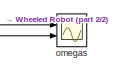
[diagram: root canvas - part 1/2, top right region]
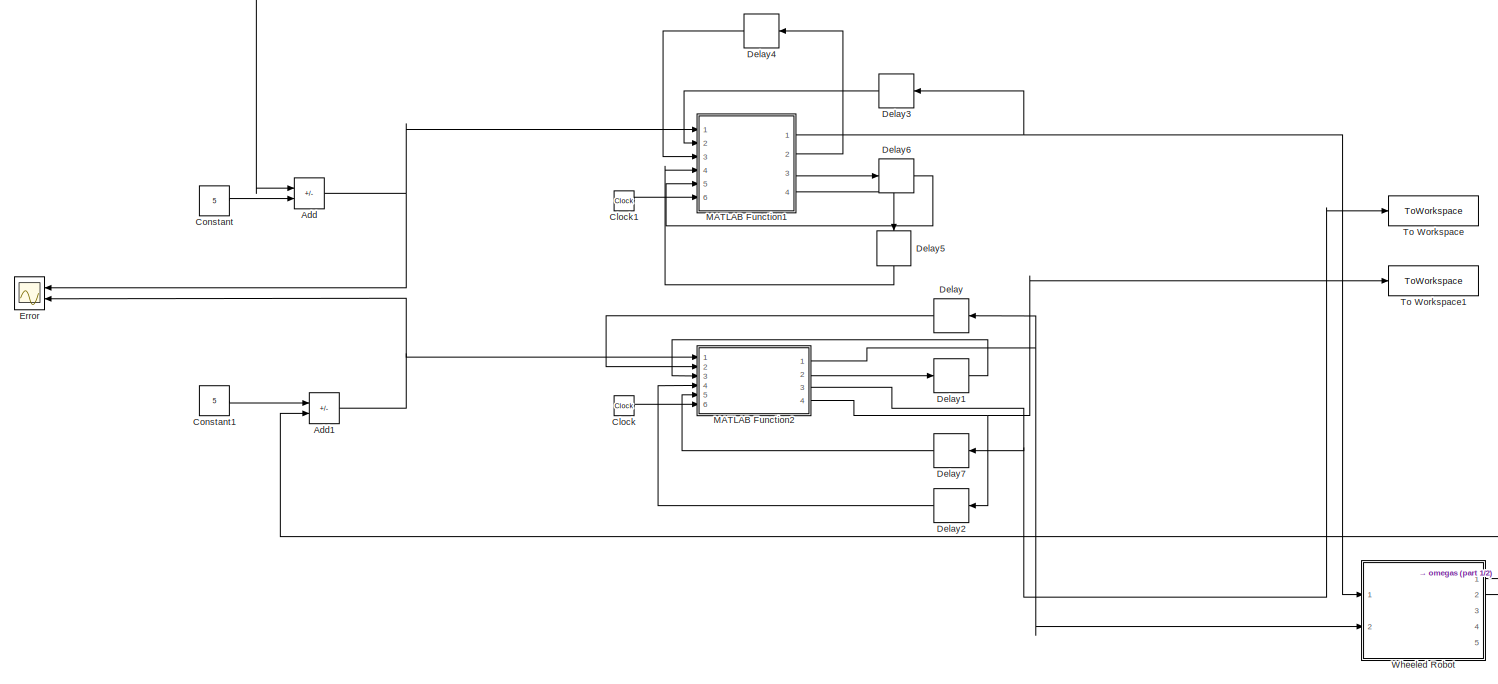
[diagram: root canvas - part 2/2, most of the canvas]
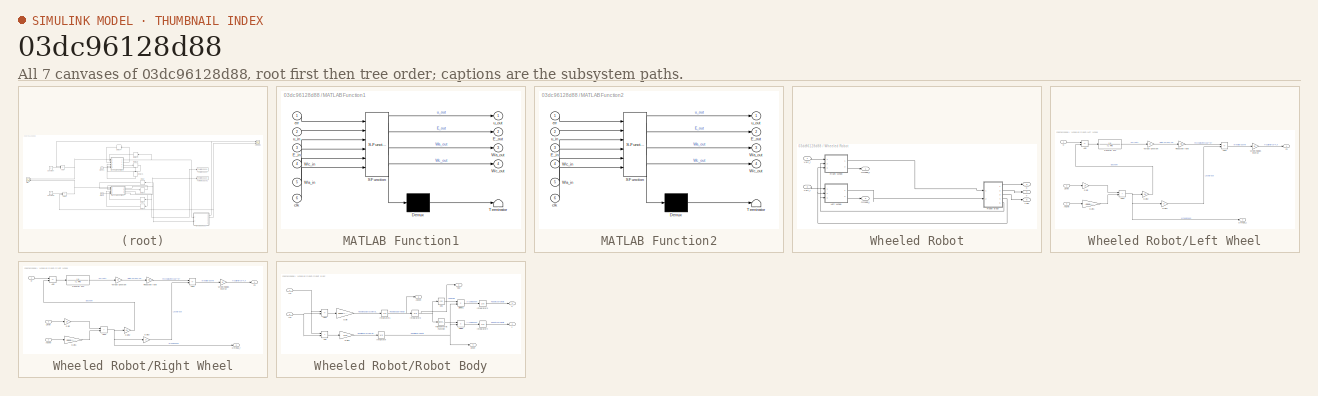
[diagram: thumbnail index - all 7 canvases of the model, root first then tree order]
MODEL slx_03dc96128d88
KIND model
CONFIG AbsTol = auto
CONFIG EnableMultiTasking = off
CONFIG FixedStep = 0.00001
CONFIG MaxStep = auto
CONFIG MinStep = auto
CONFIG RelTol = 1e-3
CONFIG SampleTimeConstraint = Unconstrained
CONFIG SolverName = VariableStepAuto
CONFIG StartTime = 0.0
CONFIG StopTime = 10
BLOCK [Sum] Add
  IconShape = rectangular
  Inputs = -+
  Ports = [2, 1]
BLOCK [Sum] Add1
  IconShape = rectangular
  Inputs = +-
  Ports = [2, 1]
BLOCK [Clock] Clock
BLOCK [Clock] Clock1
BLOCK [Constant] Constant
  SampleTime = 0.01
  Value = 5
BLOCK [Constant] Constant1
  SampleTime = 0.01
  Value = 5
BLOCK [Delay] Delay
  DelayLength = 1
  InitialCondition = 0
  InputPortMap = u0
  NameLocation = top
  Ports = [1, 1]
  SampleTime = 0.01
BLOCK [Delay] Delay1
  DelayLength = 1
  InitialCondition = [0;0;0]
  InputPortMap = u0
  Ports = [1, 1]
  SampleTime = 0.01
BLOCK [Delay] Delay2
  DelayLength = 1
  InitialCondition = [0,0,0,0;0,0,0,0;0,0,0,0;0,0,0,0]
  InputPortMap = u0
  NameLocation = top
  Ports = [1, 1]
  SampleTime = 0.01
BLOCK [Delay] Delay3
  DelayLength = 1
  InitialCondition = 0
  InputPortMap = u0
  NameLocation = top
  Ports = [1, 1]
  SampleTime = 0.01
BLOCK [Delay] Delay4
  DelayLength = 1
  InitialCondition = [0;0;0]
  InputPortMap = u0
  NameLocation = top
  Ports = [1, 1]
  SampleTime = 0.01
BLOCK [Delay] Delay5
  DelayLength = 1
  InitialCondition = [0,0,0,0;0,0,0,0;0,0,0,0;0,0,0,0]
  InputPortMap = u0
  NameLocation = left
  Ports = [1, 1]
  SampleTime = 0.01
BLOCK [Delay] Delay6
  DelayLength = 1
  InitialCondition = [0;0;0]
  InputPortMap = u0
  Ports = [1, 1]
  SampleTime = 0.01
BLOCK [Delay] Delay7
  DelayLength = 1
  InitialCondition = [0;0;0]
  InputPortMap = u0
  NameLocation = top
  Ports = [1, 1]
  SampleTime = 0.01
BLOCK [Scope] Error
  Floating = off
  NameLocation = top
  NumInputPorts = 2
  Ports = [2]
  ScopeSpecificationString = Simulink.scopes.TimeScopeBlockCfg('CurrentConfiguration', extmgr.ConfigurationSet(extmgr.Configuration('Core','General UI',true),extmgr.Configuration('Core','Source UI',true),extmgr.Configuration('Sources','WiredSimulink',true),extmgr.Configuration('Visuals','Time Domain',true,'SerializedDisplays',{struct('MinYLimReal','-15.80359','MaxYLimReal','20.72618','YLabelReal','','MinYLimMag','0.00000','Ma...<+1409ch>
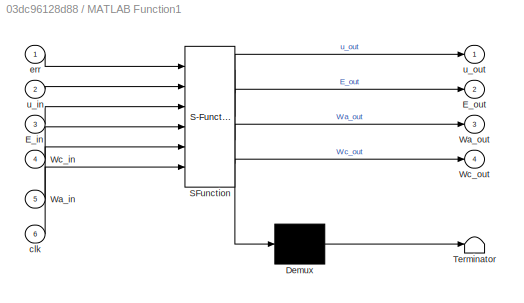
BLOCK [SubSystem] MATLAB Function1
  ErrorFcn = Stateflow.Translate.translate
  PermitHierarchicalResolution = ExplicitOnly
  Ports = [6, 4]
  RequestExecContextInheritance = off
  SFBlockType = MATLAB Function
  TreatAsAtomicUnit = on
BLOCK [Demux] MATLAB Function1/ Demux 
  Outputs = 1
  Ports = [1, 1]
BLOCK [S-Function] MATLAB Function1/ SFunction 
  EnableBusSupport = on
  FunctionName = sf_sfun
  PortCounts = [6 5]
  Ports = [6, 5]
  SFcnIsStateOwnerBlock = off
  SFunctionDeploymentMode = off
  Tag = Stateflow S-Function 2
BLOCK [Terminator] MATLAB Function1/ Terminator 
BLOCK [Inport] MATLAB Function1/E_in
  Port = 3
BLOCK [Outport] MATLAB Function1/E_out
  Port = 2
BLOCK [Inport] MATLAB Function1/Wa_in
  Port = 5
BLOCK [Outport] MATLAB Function1/Wa_out
  Port = 3
BLOCK [Inport] MATLAB Function1/Wc_in
  Port = 4
BLOCK [Outport] MATLAB Function1/Wc_out
  Port = 4
BLOCK [Inport] MATLAB Function1/clk
  Port = 6
BLOCK [Inport] MATLAB Function1/err
BLOCK [Inport] MATLAB Function1/u_in
  Port = 2
BLOCK [Outport] MATLAB Function1/u_out
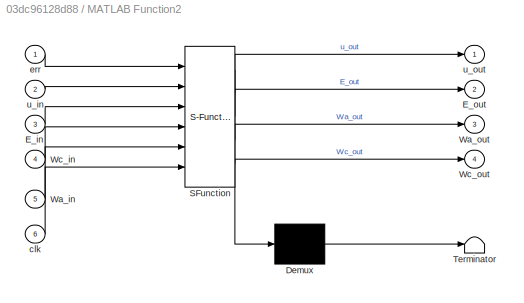
BLOCK [SubSystem] MATLAB Function2
  ErrorFcn = Stateflow.Translate.translate
  PermitHierarchicalResolution = ExplicitOnly
  Ports = [6, 4]
  RequestExecContextInheritance = off
  SFBlockType = MATLAB Function
  TreatAsAtomicUnit = on
BLOCK [Demux] MATLAB Function2/ Demux 
  Outputs = 1
  Ports = [1, 1]
BLOCK [S-Function] MATLAB Function2/ SFunction 
  EnableBusSupport = on
  FunctionName = sf_sfun
  PortCounts = [6 5]
  Ports = [6, 5]
  SFcnIsStateOwnerBlock = off
  SFunctionDeploymentMode = off
  Tag = Stateflow S-Function 1
BLOCK [Terminator] MATLAB Function2/ Terminator 
BLOCK [Inport] MATLAB Function2/E_in
  Port = 3
BLOCK [Outport] MATLAB Function2/E_out
  Port = 2
BLOCK [Inport] MATLAB Function2/Wa_in
  Port = 5
BLOCK [Outport] MATLAB Function2/Wa_out
  Port = 3
BLOCK [Inport] MATLAB Function2/Wc_in
  Port = 4
BLOCK [Outport] MATLAB Function2/Wc_out
  Port = 4
BLOCK [Inport] MATLAB Function2/clk
  Port = 6
BLOCK [Inport] MATLAB Function2/err
BLOCK [Inport] MATLAB Function2/u_in
  Port = 2
BLOCK [Outport] MATLAB Function2/u_out
BLOCK [ToWorkspace] To Workspace
  FixptAsFi = on
  MaxDataPoints = inf
  Ports = [1]
  SampleTime = 0.01
  VariableName = Wa
BLOCK [ToWorkspace] To Workspace1
  FixptAsFi = on
  MaxDataPoints = inf
  Ports = [1]
  SampleTime = 0.01
  VariableName = Wc_5
BLOCK [SubSystem] Wheeled Robot
  Ports = [2, 5]
  RequestExecContextInheritance = off
BLOCK [SubSystem] Wheeled Robot/Left Wheel
  Ports = [3, 2]
  RequestExecContextInheritance = off
BLOCK [Sum] Wheeled Robot/Left Wheel/Add
  IconShape = rectangular
  Inputs = +-
  Ports = [2, 1]
BLOCK [Sum] Wheeled Robot/Left Wheel/Add1
  IconShape = rectangular
  Inputs = +-
  Ports = [2, 1]
BLOCK [Sum] Wheeled Robot/Left Wheel/Add3
  IconShape = rectangular
  Ports = [2, 1]
BLOCK [Inport] Wheeled Robot/Left Wheel/AngVel
  Port = 3
BLOCK [Outport] Wheeled Robot/Left Wheel/Fn
BLOCK [Gain] Wheeled Robot/Left Wheel/Gain
  Gain = 1/r
BLOCK [Gain] Wheeled Robot/Left Wheel/Gain1
  Gain = -basel/(2*r)
BLOCK [Gain] Wheeled Robot/Left Wheel/Gain2
  Gain = Kb
BLOCK [Gain] Wheeled Robot/Left Wheel/Gain3
  Gain = b
BLOCK [Inport] Wheeled Robot/Left Wheel/LinVel
  Port = 2
BLOCK [Outport] Wheeled Robot/Left Wheel/Omega_l
  Port = 2
BLOCK [Gain] Wheeled Robot/Left Wheel/Reduction ratio
  Gain = NN
BLOCK [Gain] Wheeled Robot/Left Wheel/Torque Constant
  Gain = Kt
BLOCK [TransferFcn] Wheeled Robot/Left Wheel/Transfer Fcn
  AbsoluteTolerance = 0.01
  Denominator = [L RR]
BLOCK [Inport] Wheeled Robot/Left Wheel/Vl
BLOCK [Gain] Wheeled Robot/Left Wheel/Wheel Radius inverse
  Gain = 1/r
BLOCK [Outport] Wheeled Robot/Omega_l
  Port = 2
BLOCK [Outport] Wheeled Robot/Omega_r
BLOCK [SubSystem] Wheeled Robot/Right Wheel
  Ports = [3, 2]
  RequestExecContextInheritance = off
BLOCK [Sum] Wheeled Robot/Right Wheel/Add
  IconShape = rectangular
  Inputs = +-
  Ports = [2, 1]
BLOCK [Sum] Wheeled Robot/Right Wheel/Add1
  IconShape = rectangular
  Inputs = +-
  Ports = [2, 1]
BLOCK [Sum] Wheeled Robot/Right Wheel/Add3
  IconShape = rectangular
  Ports = [2, 1]
BLOCK [Inport] Wheeled Robot/Right Wheel/AngVel
  Port = 2
BLOCK [Outport] Wheeled Robot/Right Wheel/Fn
BLOCK [Gain] Wheeled Robot/Right Wheel/Gain
  Gain = 1/r
BLOCK [Gain] Wheeled Robot/Right Wheel/Gain1
  Gain = basel/(2*r)
BLOCK [Gain] Wheeled Robot/Right Wheel/Gain2
  Gain = Kb
BLOCK [Gain] Wheeled Robot/Right Wheel/Gain3
  Gain = b
BLOCK [Inport] Wheeled Robot/Right Wheel/LinVel
  Port = 3
BLOCK [Outport] Wheeled Robot/Right Wheel/Omega_r
  Port = 2
BLOCK [Gain] Wheeled Robot/Right Wheel/Reduction ratio
  Gain = NN
BLOCK [Gain] Wheeled Robot/Right Wheel/Torque Constant
  Gain = Kt
BLOCK [TransferFcn] Wheeled Robot/Right Wheel/Transfer Fcn
  Denominator = [L RR]
BLOCK [Inport] Wheeled Robot/Right Wheel/Vr
BLOCK [Gain] Wheeled Robot/Right Wheel/Wheel Radius inverse
  Gain = 1/r
BLOCK [SubSystem] Wheeled Robot/Robot Body
  Ports = [2, 5]
  RequestExecContextInheritance = off
BLOCK [Sum] Wheeled Robot/Robot Body/Add
  IconShape = rectangular
  Ports = [2, 1]
BLOCK [Sum] Wheeled Robot/Robot Body/Add1
  IconShape = rectangular
  Inputs = +-
  Ports = [2, 1]
BLOCK [Outport] Wheeled Robot/Robot Body/AngVel
  Port = 5
BLOCK [Trigonometry] Wheeled Robot/Robot Body/Cos
  Operator = cos
  Ports = [1, 1]
BLOCK [Product] Wheeled Robot/Robot Body/Divide
  Inputs = **
  Ports = [2, 1]
BLOCK [Product] Wheeled Robot/Robot Body/Divide1
  Inputs = **
  Ports = [2, 1]
BLOCK [Gain] Wheeled Robot/Robot Body/Gain
  Gain = basel/(2*Izz)
BLOCK [Gain] Wheeled Robot/Robot Body/Gain1
  Gain = 1/m
BLOCK [Inport] Wheeled Robot/Robot Body/In1
BLOCK [Inport] Wheeled Robot/Robot Body/In2
  Port = 2
BLOCK [Integrator] Wheeled Robot/Robot Body/Integrator
  Ports = [1, 1]
BLOCK [Integrator] Wheeled Robot/Robot Body/Integrator1
  Ports = [1, 1]
BLOCK [Integrator] Wheeled Robot/Robot Body/Integrator2
  Ports = [1, 1]
BLOCK [Integrator] Wheeled Robot/Robot Body/Integrator3
  Ports = [1, 1]
BLOCK [Integrator] Wheeled Robot/Robot Body/Integrator4
  Ports = [1, 1]
BLOCK [Outport] Wheeled Robot/Robot Body/LinVel
  Port = 4
BLOCK [Trigonometry] Wheeled Robot/Robot Body/Trigonometric Function
  Ports = [1, 1]
BLOCK [Outport] Wheeled Robot/Robot Body/X
BLOCK [Outport] Wheeled Robot/Robot Body/Y
  Port = 2
BLOCK [Outport] Wheeled Robot/Robot Body/Yaw
  Port = 3
BLOCK [Inport] Wheeled Robot/Volt_l
  Port = 2
BLOCK [Inport] Wheeled Robot/Volt_r
BLOCK [Outport] Wheeled Robot/X
  Port = 3
BLOCK [Outport] Wheeled Robot/Y
  Port = 4
BLOCK [Outport] Wheeled Robot/Yaw
  Port = 5
BLOCK [Scope] omegas
  Floating = off
  NumInputPorts = 2
  Ports = [2]
  ScopeSpecificationString = Simulink.scopes.TimeScopeBlockCfg('CurrentConfiguration', extmgr.ConfigurationSet(extmgr.Configuration('Core','General UI',true),extmgr.Configuration('Core','Source UI',true),extmgr.Configuration('Sources','WiredSimulink',true,'DataLoggingVariableName','ScopeData1'),extmgr.Configuration('Visuals','Time Domain',true,'SerializedDisplays',{struct('MinYLimReal','-15.72618','MaxYLimReal','20.80359','YL...<+1466ch>
NET Add1:1 -> Error:2, MATLAB Function2:1
NET Add:1 -> Error:1, MATLAB Function1:1
LINE Clock1:1 -> MATLAB Function1:6
LINE Clock:1 -> MATLAB Function2:6
LINE Constant1:1 -> Add1:1
LINE Constant:1 -> Add:2
LINE Delay1:1 -> MATLAB Function2:3
LINE Delay2:1 -> MATLAB Function2:4
LINE Delay3:1 -> MATLAB Function1:2
LINE Delay4:1 -> MATLAB Function1:3
LINE Delay5:1 -> MATLAB Function1:4
LINE Delay6:1 -> MATLAB Function1:5
LINE Delay7:1 -> MATLAB Function2:5
LINE Delay:1 -> MATLAB Function2:2
NET MATLAB Function1:1 -> Delay3:1, Wheeled Robot:1
LINE MATLAB Function1:2 -> Delay4:1
LINE MATLAB Function1:3 -> Delay6:1
LINE MATLAB Function1:4 -> Delay5:1
NET MATLAB Function2:1 -> Delay:1, Wheeled Robot:2
LINE MATLAB Function2:2 -> Delay1:1
NET MATLAB Function2:3 -> Delay7:1, To Workspace:1
NET MATLAB Function2:4 -> Delay2:1, To Workspace1:1
LINE Wheeled Robot/Left Wheel/Add1:1 -> Wheeled Robot/Left Wheel/Wheel Radius inverse:1
NET Wheeled Robot/Left Wheel/Add3:1 -> Wheeled Robot/Left Wheel/Gain2:1, Wheeled Robot/Left Wheel/Gain3:1, Wheeled Robot/Left Wheel/Omega_l:1
LINE Wheeled Robot/Left Wheel/Add:1 -> Wheeled Robot/Left Wheel/Transfer Fcn:1
LINE Wheeled Robot/Left Wheel/AngVel:1 -> Wheeled Robot/Left Wheel/Gain1:1
LINE Wheeled Robot/Left Wheel/Gain1:1 -> Wheeled Robot/Left Wheel/Add3:2
LINE Wheeled Robot/Left Wheel/Gain2:1 -> Wheeled Robot/Left Wheel/Add:2
LINE Wheeled Robot/Left Wheel/Gain3:1 -> Wheeled Robot/Left Wheel/Add1:2
LINE Wheeled Robot/Left Wheel/Gain:1 -> Wheeled Robot/Left Wheel/Add3:1
LINE Wheeled Robot/Left Wheel/LinVel:1 -> Wheeled Robot/Left Wheel/Gain:1
LINE Wheeled Robot/Left Wheel/Reduction ratio:1 -> Wheeled Robot/Left Wheel/Add1:1
LINE Wheeled Robot/Left Wheel/Torque Constant:1 -> Wheeled Robot/Left Wheel/Reduction ratio:1
LINE Wheeled Robot/Left Wheel/Transfer Fcn:1 -> Wheeled Robot/Left Wheel/Torque Constant:1
LINE Wheeled Robot/Left Wheel/Vl:1 -> Wheeled Robot/Left Wheel/Add:1
LINE Wheeled Robot/Left Wheel/Wheel Radius inverse:1 -> Wheeled Robot/Left Wheel/Fn:1
LINE Wheeled Robot/Left Wheel:1 -> Wheeled Robot/Robot Body:2
LINE Wheeled Robot/Left Wheel:2 -> Wheeled Robot/Omega_l:1
LINE Wheeled Robot/Right Wheel/Add1:1 -> Wheeled Robot/Right Wheel/Wheel Radius inverse:1
NET Wheeled Robot/Right Wheel/Add3:1 -> Wheeled Robot/Right Wheel/Gain2:1, Wheeled Robot/Right Wheel/Gain3:1, Wheeled Robot/Right Wheel/Omega_r:1
LINE Wheeled Robot/Right Wheel/Add:1 -> Wheeled Robot/Right Wheel/Transfer Fcn:1
LINE Wheeled Robot/Right Wheel/AngVel:1 -> Wheeled Robot/Right Wheel/Gain1:1
LINE Wheeled Robot/Right Wheel/Gain1:1 -> Wheeled Robot/Right Wheel/Add3:2
LINE Wheeled Robot/Right Wheel/Gain2:1 -> Wheeled Robot/Right Wheel/Add:2
LINE Wheeled Robot/Right Wheel/Gain3:1 -> Wheeled Robot/Right Wheel/Add1:2
LINE Wheeled Robot/Right Wheel/Gain:1 -> Wheeled Robot/Right Wheel/Add3:1
LINE Wheeled Robot/Right Wheel/LinVel:1 -> Wheeled Robot/Right Wheel/Gain:1
LINE Wheeled Robot/Right Wheel/Reduction ratio:1 -> Wheeled Robot/Right Wheel/Add1:1
LINE Wheeled Robot/Right Wheel/Torque Constant:1 -> Wheeled Robot/Right Wheel/Reduction ratio:1
LINE Wheeled Robot/Right Wheel/Transfer Fcn:1 -> Wheeled Robot/Right Wheel/Torque Constant:1
LINE Wheeled Robot/Right Wheel/Vr:1 -> Wheeled Robot/Right Wheel/Add:1
LINE Wheeled Robot/Right Wheel/Wheel Radius inverse:1 -> Wheeled Robot/Right Wheel/Fn:1
LINE Wheeled Robot/Right Wheel:1 -> Wheeled Robot/Robot Body:1
LINE Wheeled Robot/Right Wheel:2 -> Wheeled Robot/Omega_r:1
LINE Wheeled Robot/Robot Body/Add1:1 -> Wheeled Robot/Robot Body/Gain:1
LINE Wheeled Robot/Robot Body/Add:1 -> Wheeled Robot/Robot Body/Gain1:1
LINE Wheeled Robot/Robot Body/Cos:1 -> Wheeled Robot/Robot Body/Divide1:1
LINE Wheeled Robot/Robot Body/Divide1:1 -> Wheeled Robot/Robot Body/Integrator3:1
LINE Wheeled Robot/Robot Body/Divide:1 -> Wheeled Robot/Robot Body/Integrator4:1
LINE Wheeled Robot/Robot Body/Gain1:1 -> Wheeled Robot/Robot Body/Integrator:1
LINE Wheeled Robot/Robot Body/Gain:1 -> Wheeled Robot/Robot Body/Integrator1:1
NET Wheeled Robot/Robot Body/In1:1 -> Wheeled Robot/Robot Body/Add1:1, Wheeled Robot/Robot Body/Add:1
NET Wheeled Robot/Robot Body/In2:1 -> Wheeled Robot/Robot Body/Add1:2, Wheeled Robot/Robot Body/Add:2
NET Wheeled Robot/Robot Body/Integrator1:1 -> Wheeled Robot/Robot Body/AngVel:1, Wheeled Robot/Robot Body/Integrator2:1
NET Wheeled Robot/Robot Body/Integrator2:1 -> Wheeled Robot/Robot Body/Cos:1, Wheeled Robot/Robot Body/Trigonometric Function:1, Wheeled Robot/Robot Body/Yaw:1
LINE Wheeled Robot/Robot Body/Integrator3:1 -> Wheeled Robot/Robot Body/X:1
LINE Wheeled Robot/Robot Body/Integrator4:1 -> Wheeled Robot/Robot Body/Y:1
NET Wheeled Robot/Robot Body/Integrator:1 -> Wheeled Robot/Robot Body/Divide1:2, Wheeled Robot/Robot Body/Divide:2, Wheeled Robot/Robot Body/LinVel:1
LINE Wheeled Robot/Robot Body/Trigonometric Function:1 -> Wheeled Robot/Robot Body/Divide:1
LINE Wheeled Robot/Robot Body:1 -> Wheeled Robot/X:1
LINE Wheeled Robot/Robot Body:2 -> Wheeled Robot/Y:1
LINE Wheeled Robot/Robot Body:3 -> Wheeled Robot/Yaw:1
NET Wheeled Robot/Robot Body:4 -> Wheeled Robot/Left Wheel:2, Wheeled Robot/Right Wheel:3
NET Wheeled Robot/Robot Body:5 -> Wheeled Robot/Left Wheel:3, Wheeled Robot/Right Wheel:2
LINE Wheeled Robot/Volt_l:1 -> Wheeled Robot/Left Wheel:1
LINE Wheeled Robot/Volt_r:1 -> Wheeled Robot/Right Wheel:1
NET Wheeled Robot:1 -> Add:1, omegas:1
NET Wheeled Robot:2 -> Add1:2, omegas:2
note: NET lines group one-source signal fan-out (src -> all destinations, sorted); 1:1 wires keep LINE
CHART MATLAB Function2 states=1 transitions=1
  STATE_LABEL 'eML_blk_kernel()'
  STATE_LABEL 'SCRIPT:\nfunction [u_out, E_out, Wa_out,Wc_out] = RL(err, u_in, E_in, Wc_in,Wa_in, clk)\n r = 1.1 ; \n q = 2 * eye(3); \n \n alpha_a=0.001; alpha_c=0.001;\n if clk<=0\n  \n    Wc_in=[1,1,1,0.9;1,1,1,0.9;1,1,1,1;0.9,.9,1,1000];\n    %Wa_in=[12.3111  ; 11.8884 ; 12.0631];\n    \n    Wa_in=[1200; 10; 0];\n    \n    e_k1 = 0 ;\n    e_k2 = 0 ;\n    e_k3 = 0 ;\n    E_in = [e_k1 ; e_k2 ; e_k3];\n    u_in = 5;\n end\n    e_...<+599ch>'
CHART MATLAB Function1 states=1 transitions=1
  STATE_LABEL 'eML_blk_kernel()'
  STATE_LABEL 'SCRIPT:\nfunction [u_out, E_out, Wa_out,Wc_out] = RL(err, u_in, E_in, Wc_in,Wa_in, clk)\n r = 1.1 ; \n q = 2 * eye(3); \n \n alpha_a=0.001; alpha_c=0.001;\n if clk<=0\n  \n    Wc_in=[1,1,1,0.9;1,1,1,0.9;1,1,1,1;0.9,.9,1,1000];\n    %Wa_in=[12.3111  ; 11.8884 ; 12.0631];\n    \n    Wa_in=[1200; 10; 0];\n    \n    e_k1 = 0 ;\n    e_k2 = 0 ;\n    e_k3 = 0 ;\n    E_in = [e_k1 ; e_k2 ; e_k3];\n    u_in = 5;\n end\n    e_...<+599ch>'
CHART  states=0 transitions=0
CHART  states=0 transitions=0
